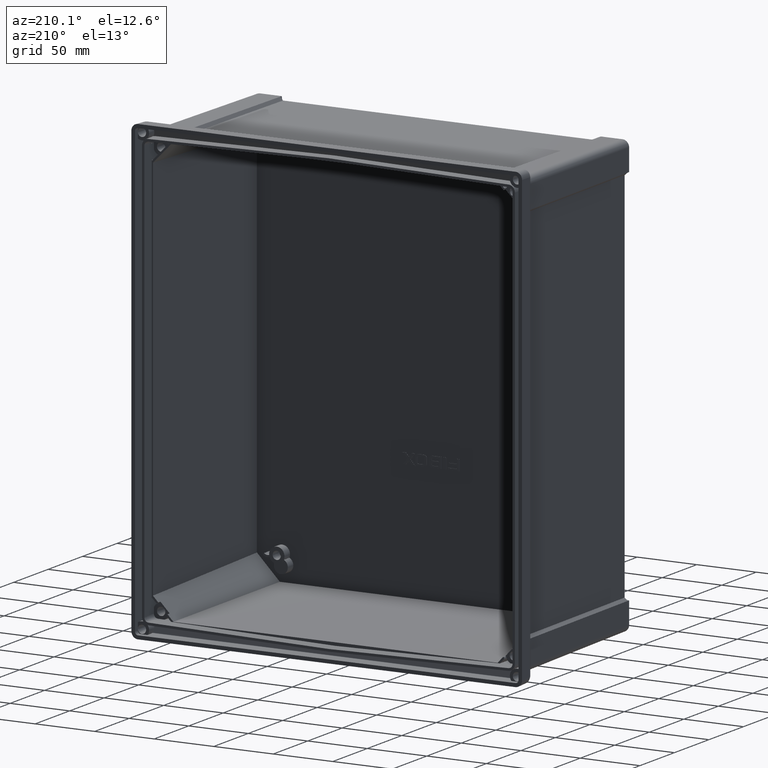
[diagram: clean part render]
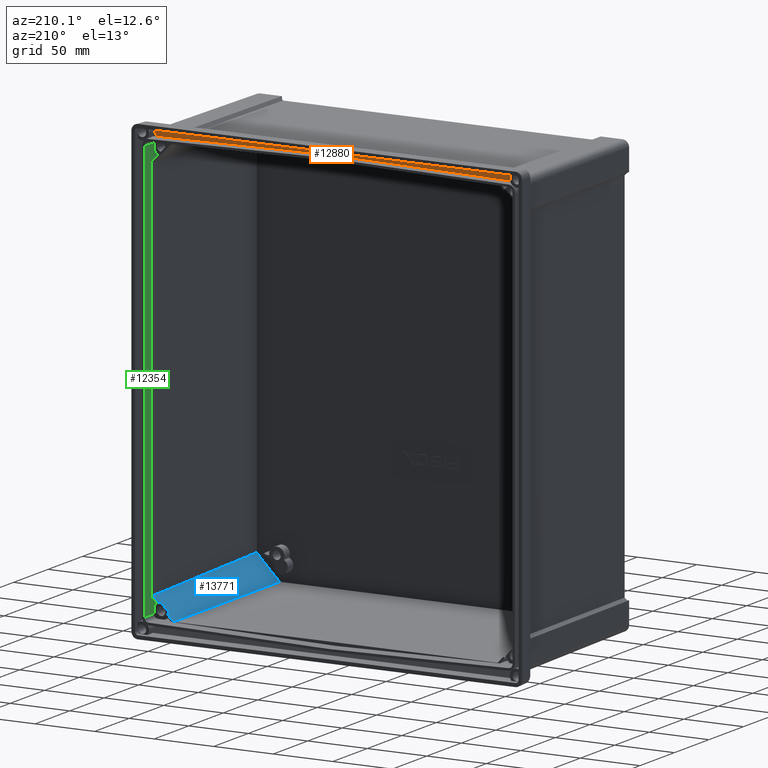
[diagram: same view with three faces highlighted in distinct colors, each labeled with its STEP entity id]
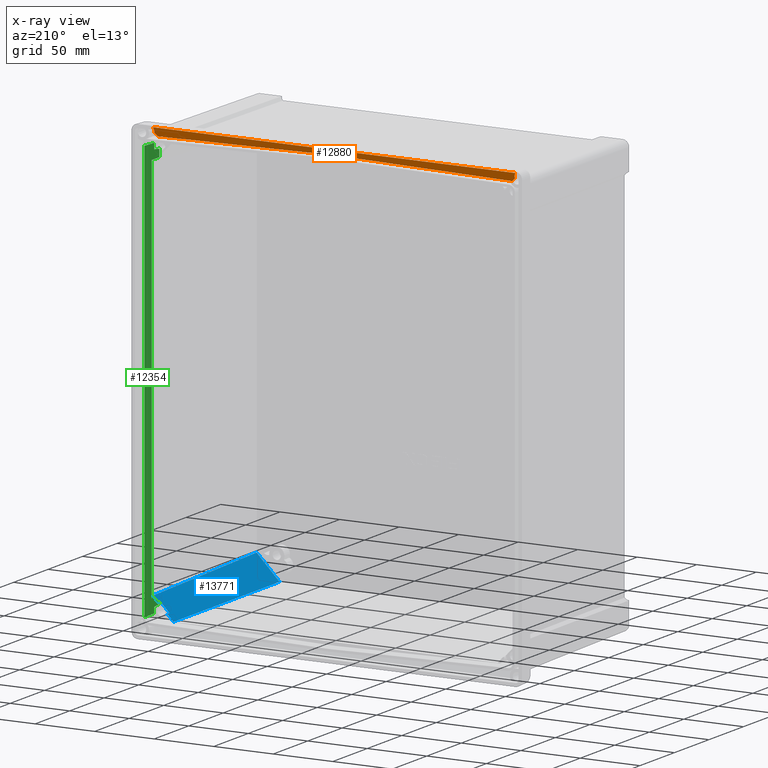
[diagram: x-ray of the same camera — body ghosted, the three highlighted faces saturated]
A machine part, auxiliary view with three faces highlighted in distinct colors.
The next image is the same camera in x-ray (body ghosted, the three faces saturated) — at least one of them is partly hidden behind the body in this view.
Their STEP definitions:

[orange] entity #12880 — the highlighted planar face has unit normal (0, -0.9781, 0.2079).
#165 = VERTEX_POINT ( 'NONE', #7134 ) ;
#751 = ORIENTED_EDGE ( 'NONE', *, *, #8360, .F. ) ;
#1157 = CARTESIAN_POINT ( 'NONE',  ( 151.2110667206298200, -11.18310603060976400, 185.3976098350939000 ) ) ;
#1221 = CARTESIAN_POINT ( 'NONE',  ( 151.4616068161777500, -11.49301136675494400, 183.9396198595771600 ) ) ;
#1276 = DIRECTION ( 'NONE',  ( 0.9998431525074352700, 0.003682270325438117500, 0.01732371984429543300 ) ) ;
#1341 = DIRECTION ( 'NONE',  ( 0.6992527780868756900, 0.1486307662483552200, 0.6992527780868756900 ) ) ;
#2128 = VERTEX_POINT ( 'NONE', #6544 ) ;
#2148 = VECTOR ( 'NONE', #12415, 1000.000000000000000 ) ;
#2388 = FACE_OUTER_BOUND ( 'NONE', #2596, .T. ) ;
#2455 = CARTESIAN_POINT ( 'NONE',  ( 151.4616068161777500, -11.49301136675494400, 183.9396198595771600 ) ) ;
#2596 = EDGE_LOOP ( 'NONE', ( #5162, #5691, #6819, #5103, #751, #7497, #10348 ) ) ;
#2793 = CARTESIAN_POINT ( 'NONE',  ( -151.2110667206297900, -11.18310603060976400, 185.3976098350938500 ) ) ;
#3158 = VECTOR ( 'NONE', #1341, 1000.000000000000000 ) ;
#3522 = LINE ( 'NONE', #3890, #9533 ) ;
#3729 = CARTESIAN_POINT ( 'NONE',  ( 151.4822619030094300, -10.87398724143744200, 186.8518993980395400 ) ) ;
#3890 = CARTESIAN_POINT ( 'NONE',  ( -148.1850706510683400, -10.93536716903261300, 186.5631295425576500 ) ) ;
#4261 =( BOUNDED_CURVE ( )  B_SPLINE_CURVE ( 3, ( #9162, #2793, #15271, #14733 ),
 .UNSPECIFIED., .F., .F. ) 
 B_SPLINE_CURVE_WITH_KNOTS ( ( 4, 4 ),
 ( 1.400617849435518800, 2.109701127121571300 ),
 .UNSPECIFIED. ) 
 CURVE ( )  GEOMETRIC_REPRESENTATION_ITEM ( )  RATIONAL_B_SPLINE_CURVE ( ( 1.000000000000000000, 0.9585371414922256900, 0.9585371414922256900, 1.000000000000000000 ) ) 
 REPRESENTATION_ITEM ( '' )  );
#5041 = DIRECTION ( 'NONE',  ( 0.9998431525074352700, -0.003682270325438080200, -0.01732371984429525700 ) ) ;
#5103 = ORIENTED_EDGE ( 'NONE', *, *, #8321, .F. ) ;
#5162 = ORIENTED_EDGE ( 'NONE', *, *, #9069, .T. ) ;
#5492 = VECTOR ( 'NONE', #1276, 1000.000000000000200 ) ;
#5506 = LINE ( 'NONE', #10978, #2148 ) ;
#5572 = CARTESIAN_POINT ( 'NONE',  ( -151.4616068161777500, -11.49301136675495100, 183.9396198595771600 ) ) ;
#5691 = ORIENTED_EDGE ( 'NONE', *, *, #8288, .T. ) ;
#5973 = VERTEX_POINT ( 'NONE', #1221 ) ;
#6209 = CARTESIAN_POINT ( 'NONE',  ( 152.2414587808916300, -10.60410584509062400, 188.1215915412808500 ) ) ;
#6443 = CARTESIAN_POINT ( 'NONE',  ( 160.7684158913757200, -9.514788029611537500, 193.2464289347751100 ) ) ;
#6499 = CARTESIAN_POINT ( 'NONE',  ( -148.9370486827473900, -12.02962276333299000, 181.4150617261467700 ) ) ;
#6544 = CARTESIAN_POINT ( 'NONE',  ( 3.608224830031758800E-013, -11.48111025579873100, 183.9956101845180300 ) ) ;
#6819 = ORIENTED_EDGE ( 'NONE', *, *, #7696, .F. ) ;
#7093 = LINE ( 'NONE', #16467, #8511 ) ;
#7134 = CARTESIAN_POINT ( 'NONE',  ( 152.2414587808916300, -10.60410584509062400, 188.1215915412808500 ) ) ;
#7391 = AXIS2_PLACEMENT_3D ( 'NONE', #11217, #8679, #11326 ) ;
#7497 = ORIENTED_EDGE ( 'NONE', *, *, #8113, .F. ) ;
#7618 = VERTEX_POINT ( 'NONE', #6499 ) ;
#7696 = EDGE_CURVE ( 'NONE', #9908, #5973, #13163, .T. ) ;
#7905 = EDGE_CURVE ( 'NONE', #13249, #16613, #4261, .T. ) ;
#8113 = EDGE_CURVE ( 'NONE', #13249, #7618, #5506, .T. ) ;
#8288 = EDGE_CURVE ( 'NONE', #165, #5973, #16561, .T. ) ;
#8321 = EDGE_CURVE ( 'NONE', #2128, #9908, #3522, .T. ) ;
#8360 = EDGE_CURVE ( 'NONE', #7618, #2128, #15532, .T. ) ;
#8511 = VECTOR ( 'NONE', #15273, 1000.000000000000000 ) ;
#8679 = DIRECTION ( 'NONE',  ( 0.0000000000000000000, -0.9781476007338062400, 0.2079116908177565900 ) ) ;
#9069 = EDGE_CURVE ( 'NONE', #16613, #165, #7093, .T. ) ;
#9162 = CARTESIAN_POINT ( 'NONE',  ( -151.4616068161777500, -11.49301136675495100, 183.9396198595771600 ) ) ;
#9533 = VECTOR ( 'NONE', #5041, 1000.000000000000200 ) ;
#9905 = CARTESIAN_POINT ( 'NONE',  ( 148.9370486827474200, -12.02962276333298100, 181.4150617261468300 ) ) ;
#9908 = VERTEX_POINT ( 'NONE', #9905 ) ;
#10348 = ORIENTED_EDGE ( 'NONE', *, *, #7905, .T. ) ;
#10978 = CARTESIAN_POINT ( 'NONE',  ( -160.7684158913757200, -9.514788029611537500, 193.2464289347751100 ) ) ;
#11217 = CARTESIAN_POINT ( 'NONE',  ( 163.5841030304689800, -10.08740959706477700, 190.5524562671978400 ) ) ;
#11274 = PLANE ( 'NONE',  #7391 ) ;
#11326 = DIRECTION ( 'NONE',  ( 0.0000000000000000000, -0.2079116908177565700, -0.9781476007338061300 ) ) ;
#11671 = CARTESIAN_POINT ( 'NONE',  ( -152.2414587808916100, -10.60410584509062400, 188.1215915412808500 ) ) ;
#12415 = DIRECTION ( 'NONE',  ( 0.6992527780868756900, -0.1486307662483552200, -0.6992527780868756900 ) ) ;
#12880 = ADVANCED_FACE ( 'NONE', ( #2388 ), #11274, .F. ) ;
#13163 = LINE ( 'NONE', #6443, #3158 ) ;
#13249 = VERTEX_POINT ( 'NONE', #5572 ) ;
#14733 = CARTESIAN_POINT ( 'NONE',  ( -152.2414587808916100, -10.60410584509062400, 188.1215915412808500 ) ) ;
#15271 = CARTESIAN_POINT ( 'NONE',  ( -151.4822619030094000, -10.87398724143744000, 186.8518993980394800 ) ) ;
#15273 = DIRECTION ( 'NONE',  ( 1.000000000000000000, -0.0000000000000000000, -0.0000000000000000000 ) ) ;
#15527 = CARTESIAN_POINT ( 'NONE',  ( -160.9791572408738900, -12.07397201840174000, 181.2064148854173900 ) ) ;
#15532 = LINE ( 'NONE', #15527, #5492 ) ;
#16467 = CARTESIAN_POINT ( 'NONE',  ( 156.0256848284091400, -10.60410584509062400, 188.1215915412808500 ) ) ;
#16561 =( BOUNDED_CURVE ( )  B_SPLINE_CURVE ( 3, ( #6209, #3729, #1157, #2455 ),
 .UNSPECIFIED., .F., .F. ) 
 B_SPLINE_CURVE_WITH_KNOTS ( ( 4, 4 ),
 ( 4.173484180058013100, 4.882567457744067400 ),
 .UNSPECIFIED. ) 
 CURVE ( )  GEOMETRIC_REPRESENTATION_ITEM ( )  RATIONAL_B_SPLINE_CURVE ( ( 1.000000000000000000, 0.9585371414922253500, 0.9585371414922253500, 1.000000000000000000 ) ) 
 REPRESENTATION_ITEM ( '' )  );
#16613 = VERTEX_POINT ( 'NONE', #11671 ) ;

[blue] entity #13771 — the highlighted planar face has unit normal (-0.7148, 0.0262, 0.6989).
#921 = EDGE_CURVE ( 'NONE', #8559, #13730, #1251, .T. ) ;
#993 = CARTESIAN_POINT ( 'NONE',  ( 151.6505292531113000, -155.2969110980685600, -157.5131943288069700 ) ) ;
#1160 = DIRECTION ( 'NONE',  ( -0.01151512416747951100, -0.9996042928365807000, 0.02566436553057087700 ) ) ;
#1251 = LINE ( 'NONE', #9276, #10664 ) ;
#1768 = EDGE_CURVE ( 'NONE', #7438, #14518, #5385, .T. ) ;
#2182 = CARTESIAN_POINT ( 'NONE',  ( 148.7450473342942100, -15.65864259205360800, -165.7152199947221000 ) ) ;
#2340 = CARTESIAN_POINT ( 'NONE',  ( 152.9557561004886800, -160.0000000000000000, -156.0020790585016600 ) ) ;
#3359 = DIRECTION ( 'NONE',  ( -0.04289170189002464900, -0.9990589246362895400, -0.006447248526140959000 ) ) ;
#3841 = CARTESIAN_POINT ( 'NONE',  ( 151.5963511617760000, -160.0000000000000000, -157.3924447546334900 ) ) ;
#4357 = FACE_OUTER_BOUND ( 'NONE', #13219, .T. ) ;
#4496 = VECTOR ( 'NONE', #16129, 1000.000000000000000 ) ;
#4586 = ORIENTED_EDGE ( 'NONE', *, *, #921, .F. ) ;
#4897 = VECTOR ( 'NONE', #3359, 1000.000000000000100 ) ;
#5373 = DIRECTION ( 'NONE',  ( -0.005891600630906717800, 0.9990383901322230600, -0.04344633568003149900 ) ) ;
#5385 = LINE ( 'NONE', #10624, #10224 ) ;
#5390 = DIRECTION ( 'NONE',  ( 0.6991008731783908700, -0.0000000000000000000, 0.7150230549578184800 ) ) ;
#5497 = DIRECTION ( 'NONE',  ( 0.6991008731783908700, -0.0000000000000000000, 0.7150230549578184800 ) ) ;
#5965 = VERTEX_POINT ( 'NONE', #3841 ) ;
#5977 = CARTESIAN_POINT ( 'NONE',  ( 136.1093270594755300, -12.65864259205361500, -178.7510913930336800 ) ) ;
#6373 = LINE ( 'NONE', #6478, #14239 ) ;
#6478 = CARTESIAN_POINT ( 'NONE',  ( 155.6583369385333200, -15.65864259205360100, -158.6444786435383200 ) ) ;
#7142 = ORIENTED_EDGE ( 'NONE', *, *, #11914, .T. ) ;
#7275 = LINE ( 'NONE', #8128, #10505 ) ;
#7438 = VERTEX_POINT ( 'NONE', #12431 ) ;
#8128 = CARTESIAN_POINT ( 'NONE',  ( 141.9161001859432100, -160.5552279442020700, -167.2723687185333900 ) ) ;
#8153 = VERTEX_POINT ( 'NONE', #2182 ) ;
#8559 = VERTEX_POINT ( 'NONE', #5977 ) ;
#8667 = EDGE_CURVE ( 'NONE', #7438, #8153, #13748, .T. ) ;
#8732 = EDGE_CURVE ( 'NONE', #8559, #8990, #14337, .T. ) ;
#8848 = VERTEX_POINT ( 'NONE', #12541 ) ;
#8990 = VERTEX_POINT ( 'NONE', #9909 ) ;
#9181 = CARTESIAN_POINT ( 'NONE',  ( 141.0439138674030900, -12.65864259205362100, -173.7041182454854000 ) ) ;
#9276 = CARTESIAN_POINT ( 'NONE',  ( 154.5314742014551500, -12.65864259205361500, -159.9093756497042000 ) ) ;
#9399 = ORIENTED_EDGE ( 'NONE', *, *, #8667, .T. ) ;
#9909 = CARTESIAN_POINT ( 'NONE',  ( 132.3728498188422400, -160.0000000000000000, -177.0537657235501000 ) ) ;
#10224 = VECTOR ( 'NONE', #5497, 1000.000000000000000 ) ;
#10334 = EDGE_CURVE ( 'NONE', #14518, #5965, #14704, .T. ) ;
#10505 = VECTOR ( 'NONE', #5373, 1000.000000000000100 ) ;
#10624 = CARTESIAN_POINT ( 'NONE',  ( 154.5314742014551500, -12.65864259205361500, -159.9093756497042000 ) ) ;
#10664 = VECTOR ( 'NONE', #5390, 1000.000000000000000 ) ;
#10888 = VECTOR ( 'NONE', #1160, 1000.000000000000100 ) ;
#11136 = DIRECTION ( 'NONE',  ( -0.6991008731783919800, 0.0000000000000000000, -0.7150230549578173700 ) ) ;
#11600 = DIRECTION ( 'NONE',  ( 0.6991008731783919800, 0.0000000000000000000, 0.7150230549578172600 ) ) ;
#11666 = DIRECTION ( 'NONE',  ( -0.6991008731783920900, 0.0000000000000000000, -0.7150230549578173700 ) ) ;
#11914 = EDGE_CURVE ( 'NONE', #8153, #8848, #6373, .T. ) ;
#11929 = AXIS2_PLACEMENT_3D ( 'NONE', #14138, #15400, #11600 ) ;
#12385 = ORIENTED_EDGE ( 'NONE', *, *, #1768, .F. ) ;
#12431 = CARTESIAN_POINT ( 'NONE',  ( 148.8738436470011400, -12.65864259205362100, -165.6958600299578300 ) ) ;
#12541 = CARTESIAN_POINT ( 'NONE',  ( 141.0616056819192200, -15.65864259205360800, -173.5736537825303300 ) ) ;
#12731 = CARTESIAN_POINT ( 'NONE',  ( 153.2936768312595500, -12.65864259205362600, -161.1753641372199300 ) ) ;
#13219 = EDGE_LOOP ( 'NONE', ( #7142, #16656, #4586, #15658, #14715, #14977, #12385, #9399 ) ) ;
#13730 = VERTEX_POINT ( 'NONE', #9181 ) ;
#13748 = LINE ( 'NONE', #16080, #4897 ) ;
#13771 = ADVANCED_FACE ( 'NONE', ( #4357 ), #14303, .T. ) ;
#14138 = CARTESIAN_POINT ( 'NONE',  ( 152.9557561004886800, -160.0000000000000000, -156.0020790585016600 ) ) ;
#14239 = VECTOR ( 'NONE', #11666, 1000.000000000000100 ) ;
#14303 = PLANE ( 'NONE',  #11929 ) ;
#14337 = LINE ( 'NONE', #14955, #4496 ) ;
#14518 = VERTEX_POINT ( 'NONE', #12731 ) ;
#14704 = LINE ( 'NONE', #993, #10888 ) ;
#14715 = ORIENTED_EDGE ( 'NONE', *, *, #16285, .F. ) ;
#14955 = CARTESIAN_POINT ( 'NONE',  ( 132.4890677789722100, -155.4171507283624900, -177.1065586925098500 ) ) ;
#14977 = ORIENTED_EDGE ( 'NONE', *, *, #10334, .F. ) ;
#15307 = VECTOR ( 'NONE', #11136, 1000.000000000000100 ) ;
#15400 = DIRECTION ( 'NONE',  ( -0.7147780344149825500, 0.02617694830787321200, 0.6988613087695877400 ) ) ;
#15403 = EDGE_CURVE ( 'NONE', #8848, #13730, #7275, .T. ) ;
#15658 = ORIENTED_EDGE ( 'NONE', *, *, #8732, .T. ) ;
#15719 = LINE ( 'NONE', #2340, #15307 ) ;
#16080 = CARTESIAN_POINT ( 'NONE',  ( 142.5702595446287800, -159.4854570378369100, -166.6433806813329600 ) ) ;
#16129 = DIRECTION ( 'NONE',  ( -0.02534949299074918500, -0.9996123263491756300, 0.01151521671099468700 ) ) ;
#16285 = EDGE_CURVE ( 'NONE', #5965, #8990, #15719, .T. ) ;
#16656 = ORIENTED_EDGE ( 'NONE', *, *, #15403, .T. ) ;

[green] entity #12354 — the highlighted planar face has unit normal (-0.9994, 0.0349, -0).
#35 = CARTESIAN_POINT ( 'NONE',  ( 154.1889145227843300, -15.65864259205361500, -170.5310713454272800 ) ) ;
#77 = VECTOR ( 'NONE', #8721, 1000.000000000000000 ) ;
#89 = CARTESIAN_POINT ( 'NONE',  ( 154.6484244475658200, -2.500000000000000000, -175.5798130655717000 ) ) ;
#198 = ORIENTED_EDGE ( 'NONE', *, *, #5611, .F. ) ;
#307 = DIRECTION ( 'NONE',  ( 0.03489926192117735700, 0.9993841037616445500, 0.003668060235561838200 ) ) ;
#323 = B_SPLINE_CURVE_WITH_KNOTS ( 'NONE', 3,
 ( #13833, #7434, #16306, #13678, #7486, #16409 ),
 .UNSPECIFIED., .F., .F.,
 ( 4, 2, 4 ),
 ( 0.003068885452806594200, 0.006782872149856027400, 0.01049685884690546000 ),
 .UNSPECIFIED. ) ;
#428 = CARTESIAN_POINT ( 'NONE',  ( 154.6329914930000500, -2.941941995845954900, 163.1624732054956200 ) ) ;
#801 = CARTESIAN_POINT ( 'NONE',  ( 154.1889145227843000, -15.65864259205361500, -175.2312035539308100 ) ) ;
#811 = CARTESIAN_POINT ( 'NONE',  ( 155.4961504795928700, 21.77569736764859300, -160.0051319985383300 ) ) ;
#843 = CARTESIAN_POINT ( 'NONE',  ( 154.2936768312595500, -12.65864259205362100, 163.1268097974589800 ) ) ;
#863 = EDGE_CURVE ( 'NONE', #3057, #5393, #13672, .T. ) ;
#1079 = VECTOR ( 'NONE', #15432, 999.9999999999998900 ) ;
#1158 = AXIS2_PLACEMENT_3D ( 'NONE', #9935, #13912, #12518 ) ;
#1178 = CARTESIAN_POINT ( 'NONE',  ( 154.2936768312595700, -12.65864259205361500, 175.2312035539308100 ) ) ;
#1253 = CARTESIAN_POINT ( 'NONE',  ( 154.0182907628176600, -20.54466779854359300, -169.7426107752041600 ) ) ;
#1319 = LINE ( 'NONE', #11096, #77 ) ;
#1507 = CARTESIAN_POINT ( 'NONE',  ( 153.9325486729849500, -23.00000000000000000, -163.2814892852339000 ) ) ;
#1521 = DIRECTION ( 'NONE',  ( 5.426417915639938900E-015, 0.0000000000000000000, -1.000000000000000000 ) ) ;
#1822 = ORIENTED_EDGE ( 'NONE', *, *, #15163, .F. ) ;
#2007 = CARTESIAN_POINT ( 'NONE',  ( 154.2936768312595500, -12.65864259205361500, 179.0171582723027100 ) ) ;
#2420 = VERTEX_POINT ( 'NONE', #1507 ) ;
#2530 = DIRECTION ( 'NONE',  ( 0.03489949670250103900, 0.9993908270190956500, 2.769274451954731400E-016 ) ) ;
#2606 = VERTEX_POINT ( 'NONE', #3071 ) ;
#2690 = CARTESIAN_POINT ( 'NONE',  ( 154.1889145227843600, -15.65864259205361500, 165.8811094309289200 ) ) ;
#2697 = CARTESIAN_POINT ( 'NONE',  ( 154.1037834394821600, -18.09647785574544100, -170.1064226818208500 ) ) ;
#2741 = CARTESIAN_POINT ( 'NONE',  ( 153.9325486729848900, -23.00000000000000000, 169.4207617193805200 ) ) ;
#2809 = ORIENTED_EDGE ( 'NONE', *, *, #8441, .F. ) ;
#3057 = VERTEX_POINT ( 'NONE', #6251 ) ;
#3071 = CARTESIAN_POINT ( 'NONE',  ( 154.1889145227843300, -15.65864259205361500, 170.5310713454272800 ) ) ;
#3074 = EDGE_CURVE ( 'NONE', #5393, #8710, #8075, .T. ) ;
#3076 = DIRECTION ( 'NONE',  ( 5.426417915639938900E-015, -0.0000000000000000000, 1.000000000000000000 ) ) ;
#3167 = LINE ( 'NONE', #2007, #7540 ) ;
#3664 = DIRECTION ( 'NONE',  ( 0.03487899055459543800, 0.9988036077738138300, 0.03427548855823894800 ) ) ;
#3679 = VECTOR ( 'NONE', #307, 1000.000000000000000 ) ;
#3718 = VECTOR ( 'NONE', #13076, 1000.000000000000200 ) ;
#4093 = ORIENTED_EDGE ( 'NONE', *, *, #10008, .T. ) ;
#4163 = CARTESIAN_POINT ( 'NONE',  ( 154.2936768312595500, -12.65864259205361500, -175.2312035539308100 ) ) ;
#4689 = VERTEX_POINT ( 'NONE', #14510 ) ;
#4748 = ORIENTED_EDGE ( 'NONE', *, *, #8972, .F. ) ;
#5393 = VERTEX_POINT ( 'NONE', #12331 ) ;
#5460 = EDGE_LOOP ( 'NONE', ( #12990, #12977, #13931, #4093, #2809, #15784, #14521, #1822, #13647, #12826, #10794, #9462, #13405, #4748, #198, #6529 ) ) ;
#5611 = EDGE_CURVE ( 'NONE', #2606, #7884, #323, .T. ) ;
#5665 = LINE ( 'NONE', #428, #3679 ) ;
#6251 = CARTESIAN_POINT ( 'NONE',  ( 154.1889145227843300, -15.65864259205361500, 175.2312035539308100 ) ) ;
#6277 = CARTESIAN_POINT ( 'NONE',  ( 153.9566598004969400, -22.30954764562992300, -174.9000178401769600 ) ) ;
#6529 = ORIENTED_EDGE ( 'NONE', *, *, #14199, .F. ) ;
#6651 = EDGE_CURVE ( 'NONE', #12403, #2420, #15388, .T. ) ;
#6951 = VECTOR ( 'NONE', #15994, 1000.000000000000000 ) ;
#6961 = DIRECTION ( 'NONE',  ( 1.550590816515582000E-016, -0.0000000000000000000, -1.000000000000000000 ) ) ;
#7144 = VECTOR ( 'NONE', #7338, 1000.000000000000100 ) ;
#7338 = DIRECTION ( 'NONE',  ( 0.03477229052229497500, 0.9957481186235621600, -0.08530282568279624900 ) ) ;
#7434 = CARTESIAN_POINT ( 'NONE',  ( 154.1464394921391100, -16.87496832780855300, 170.3035188688393800 ) ) ;
#7486 = CARTESIAN_POINT ( 'NONE',  ( 153.9754494140031800, -21.77148351417546100, 169.5766899870584700 ) ) ;
#7540 = VECTOR ( 'NONE', #10962, 1000.000000000000000 ) ;
#7880 = EDGE_CURVE ( 'NONE', #8438, #12403, #16158, .T. ) ;
#7884 = VERTEX_POINT ( 'NONE', #2741 ) ;
#8033 = CARTESIAN_POINT ( 'NONE',  ( 154.5871629840246400, -4.254298786445684900, -163.1576564351062800 ) ) ;
#8075 = LINE ( 'NONE', #8742, #11320 ) ;
#8141 = CARTESIAN_POINT ( 'NONE',  ( 153.9325486729848900, -23.00000000000000000, 179.0000000000000000 ) ) ;
#8438 = VERTEX_POINT ( 'NONE', #13130 ) ;
#8441 = EDGE_CURVE ( 'NONE', #13590, #8784, #12940, .T. ) ;
#8508 = VECTOR ( 'NONE', #6961, 1000.000000000000000 ) ;
#8710 = VERTEX_POINT ( 'NONE', #10989 ) ;
#8721 = DIRECTION ( 'NONE',  ( 1.550590816515582000E-016, -0.0000000000000000000, -1.000000000000000000 ) ) ;
#8742 = CARTESIAN_POINT ( 'NONE',  ( 154.6525337746545000, -2.382324268663580800, 175.5838512900550100 ) ) ;
#8784 = VERTEX_POINT ( 'NONE', #12491 ) ;
#8943 = VECTOR ( 'NONE', #3076, 1000.000000000000000 ) ;
#8972 = EDGE_CURVE ( 'NONE', #7884, #10404, #1319, .T. ) ;
#9118 = CARTESIAN_POINT ( 'NONE',  ( 154.0078472989741800, -20.84372947431460300, 163.0967679030517600 ) ) ;
#9328 = DIRECTION ( 'NONE',  ( -0.03489926192117735700, -0.9993841037616445500, 0.003668060235561838200 ) ) ;
#9462 = ORIENTED_EDGE ( 'NONE', *, *, #16031, .F. ) ;
#9544 = CARTESIAN_POINT ( 'NONE',  ( 154.1889145227843600, -15.65864259205361500, -165.8811094309289200 ) ) ;
#9602 = CARTESIAN_POINT ( 'NONE',  ( 154.6484244475658200, -2.500000000000000000, -186.4334018212029800 ) ) ;
#9883 = LINE ( 'NONE', #6277, #1079 ) ;
#9935 = CARTESIAN_POINT ( 'NONE',  ( 154.6309640628198300, -3.000000000000000000, 179.0000000000000000 ) ) ;
#9976 = PLANE ( 'NONE',  #1158 ) ;
#10008 = EDGE_CURVE ( 'NONE', #13012, #8784, #9883, .T. ) ;
#10355 = CARTESIAN_POINT ( 'NONE',  ( 154.1464394921392200, -16.87496832780856000, -170.3035188688394900 ) ) ;
#10397 = VECTOR ( 'NONE', #14890, 1000.000000000000000 ) ;
#10404 = VERTEX_POINT ( 'NONE', #14096 ) ;
#10794 = ORIENTED_EDGE ( 'NONE', *, *, #13530, .F. ) ;
#10962 = DIRECTION ( 'NONE',  ( 1.550442196909972000E-016, 0.0000000000000000000, -1.000000000000000000 ) ) ;
#10989 = CARTESIAN_POINT ( 'NONE',  ( 154.6484244475657600, -2.500000000000000000, 175.5798130655716700 ) ) ;
#11096 = CARTESIAN_POINT ( 'NONE',  ( 153.9325486729848900, -23.00000000000000000, 179.0000000000000000 ) ) ;
#11320 = VECTOR ( 'NONE', #3664, 999.9999999999998900 ) ;
#11477 = VERTEX_POINT ( 'NONE', #11854 ) ;
#11854 = CARTESIAN_POINT ( 'NONE',  ( 153.9325486729849500, -23.00000000000000000, -169.4207617193806100 ) ) ;
#12331 = CARTESIAN_POINT ( 'NONE',  ( 154.2936768312595500, -12.65864259205361500, 175.2312035539308100 ) ) ;
#12354 = ADVANCED_FACE ( 'NONE', ( #13014 ), #9976, .T. ) ;
#12403 = VERTEX_POINT ( 'NONE', #12777 ) ;
#12491 = CARTESIAN_POINT ( 'NONE',  ( 154.2936768312595500, -12.65864259205361500, -175.2312035539308100 ) ) ;
#12518 = DIRECTION ( 'NONE',  ( -0.03489949670250104600, -0.9993908270190956500, 0.0000000000000000000 ) ) ;
#12777 = CARTESIAN_POINT ( 'NONE',  ( 154.0200905936032400, -20.49312738830134300, -163.0980547251707500 ) ) ;
#12826 = ORIENTED_EDGE ( 'NONE', *, *, #7880, .F. ) ;
#12833 = B_SPLINE_CURVE_WITH_KNOTS ( 'NONE', 3,
 ( #35, #10355, #2697, #1253, #16531, #14004 ),
 .UNSPECIFIED., .F., .F.,
 ( 4, 2, 4 ),
 ( 0.003068885452806627600, 0.006782872149856049100, 0.01049685884690547100 ),
 .UNSPECIFIED. ) ;
#12912 = EDGE_CURVE ( 'NONE', #4689, #11477, #12833, .T. ) ;
#12940 = LINE ( 'NONE', #4163, #3718 ) ;
#12977 = ORIENTED_EDGE ( 'NONE', *, *, #3074, .T. ) ;
#12990 = ORIENTED_EDGE ( 'NONE', *, *, #863, .T. ) ;
#13012 = VERTEX_POINT ( 'NONE', #89 ) ;
#13014 = FACE_OUTER_BOUND ( 'NONE', #5460, .T. ) ;
#13076 = DIRECTION ( 'NONE',  ( 0.03489949670250103900, 0.9993908270190956500, -1.893792541532686200E-016 ) ) ;
#13130 = CARTESIAN_POINT ( 'NONE',  ( 154.2936768312596000, -12.65864259205362100, -163.1268097974588300 ) ) ;
#13405 = ORIENTED_EDGE ( 'NONE', *, *, #13560, .F. ) ;
#13443 = EDGE_CURVE ( 'NONE', #13012, #8710, #13789, .T. ) ;
#13492 = EDGE_CURVE ( 'NONE', #13590, #4689, #14590, .T. ) ;
#13530 = EDGE_CURVE ( 'NONE', #15638, #8438, #3167, .T. ) ;
#13560 = EDGE_CURVE ( 'NONE', #10404, #14574, #13974, .T. ) ;
#13590 = VERTEX_POINT ( 'NONE', #801 ) ;
#13647 = ORIENTED_EDGE ( 'NONE', *, *, #6651, .F. ) ;
#13672 = LINE ( 'NONE', #1178, #16480 ) ;
#13678 = CARTESIAN_POINT ( 'NONE',  ( 154.0182907628176000, -20.54466779854360000, 169.7426107752041000 ) ) ;
#13789 = LINE ( 'NONE', #9602, #6951 ) ;
#13833 = CARTESIAN_POINT ( 'NONE',  ( 154.1889145227843300, -15.65864259205361500, 170.5310713454272800 ) ) ;
#13912 = DIRECTION ( 'NONE',  ( -0.9993908270190957600, 0.03489949670250105200, -1.549646238485722500E-016 ) ) ;
#13931 = ORIENTED_EDGE ( 'NONE', *, *, #13443, .F. ) ;
#13974 = LINE ( 'NONE', #15031, #7144 ) ;
#14004 = CARTESIAN_POINT ( 'NONE',  ( 153.9325486729849500, -23.00000000000000000, -169.4207617193806100 ) ) ;
#14096 = CARTESIAN_POINT ( 'NONE',  ( 153.9325486729848900, -23.00000000000000000, 163.2814892852339900 ) ) ;
#14199 = EDGE_CURVE ( 'NONE', #3057, #2606, #16569, .T. ) ;
#14510 = CARTESIAN_POINT ( 'NONE',  ( 154.1889145227843300, -15.65864259205361500, -170.5310713454272800 ) ) ;
#14521 = ORIENTED_EDGE ( 'NONE', *, *, #12912, .T. ) ;
#14569 = VECTOR ( 'NONE', #9328, 1000.000000000000000 ) ;
#14574 = VERTEX_POINT ( 'NONE', #9118 ) ;
#14590 = LINE ( 'NONE', #9544, #8943 ) ;
#14890 = DIRECTION ( 'NONE',  ( -0.03480655297808932200, -0.9967292669857842300, -0.07293334082410274400 ) ) ;
#14937 = LINE ( 'NONE', #8141, #8508 ) ;
#15031 = CARTESIAN_POINT ( 'NONE',  ( 154.5792581450874900, -4.480663756409060600, 161.6949919755209100 ) ) ;
#15163 = EDGE_CURVE ( 'NONE', #2420, #11477, #14937, .T. ) ;
#15388 = LINE ( 'NONE', #811, #10397 ) ;
#15432 = DIRECTION ( 'NONE',  ( -0.03487899055459545200, -0.9988036077738138300, 0.03427548855823894800 ) ) ;
#15638 = VERTEX_POINT ( 'NONE', #843 ) ;
#15784 = ORIENTED_EDGE ( 'NONE', *, *, #13492, .T. ) ;
#15994 = DIRECTION ( 'NONE',  ( -1.550590816515582000E-016, -0.0000000000000000000, 1.000000000000000000 ) ) ;
#16031 = EDGE_CURVE ( 'NONE', #14574, #15638, #5665, .T. ) ;
#16158 = LINE ( 'NONE', #8033, #14569 ) ;
#16166 = VECTOR ( 'NONE', #1521, 1000.000000000000000 ) ;
#16306 = CARTESIAN_POINT ( 'NONE',  ( 154.1037834394821000, -18.09647785574543000, 170.1064226818207300 ) ) ;
#16409 = CARTESIAN_POINT ( 'NONE',  ( 153.9325486729848900, -23.00000000000000000, 169.4207617193805200 ) ) ;
#16480 = VECTOR ( 'NONE', #2530, 1000.000000000000200 ) ;
#16531 = CARTESIAN_POINT ( 'NONE',  ( 153.9754494140032400, -21.77148351417546100, -169.5766899870585000 ) ) ;
#16569 = LINE ( 'NONE', #2690, #16166 ) ;